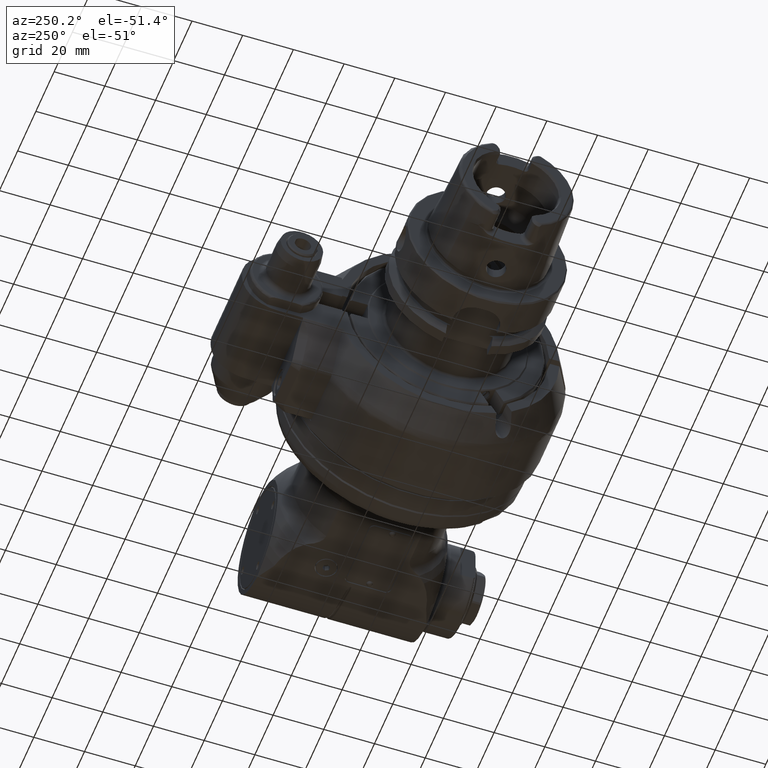
[diagram: clean part render]
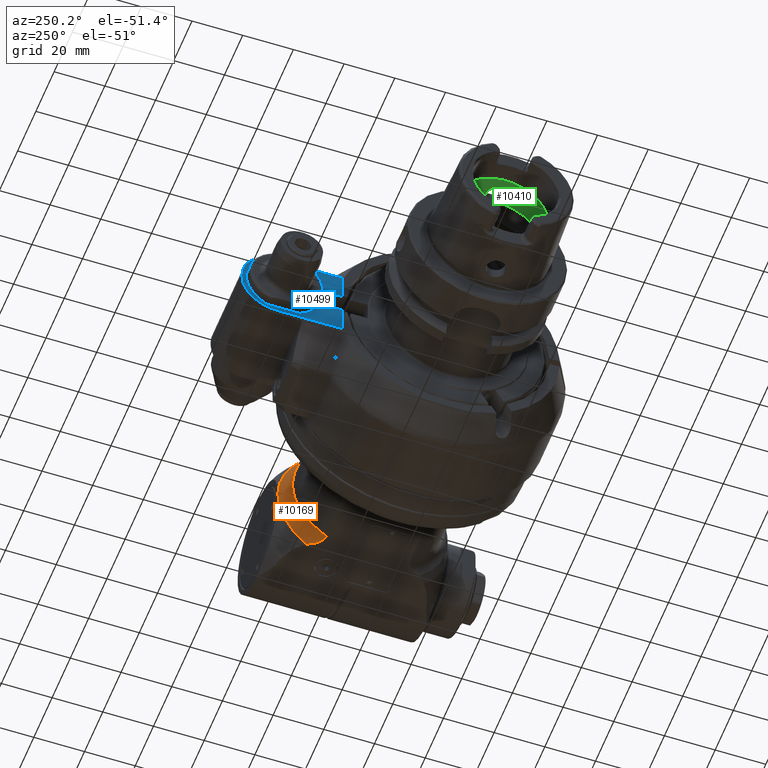
[diagram: same view with three faces highlighted in distinct colors, each labeled with its STEP entity id]
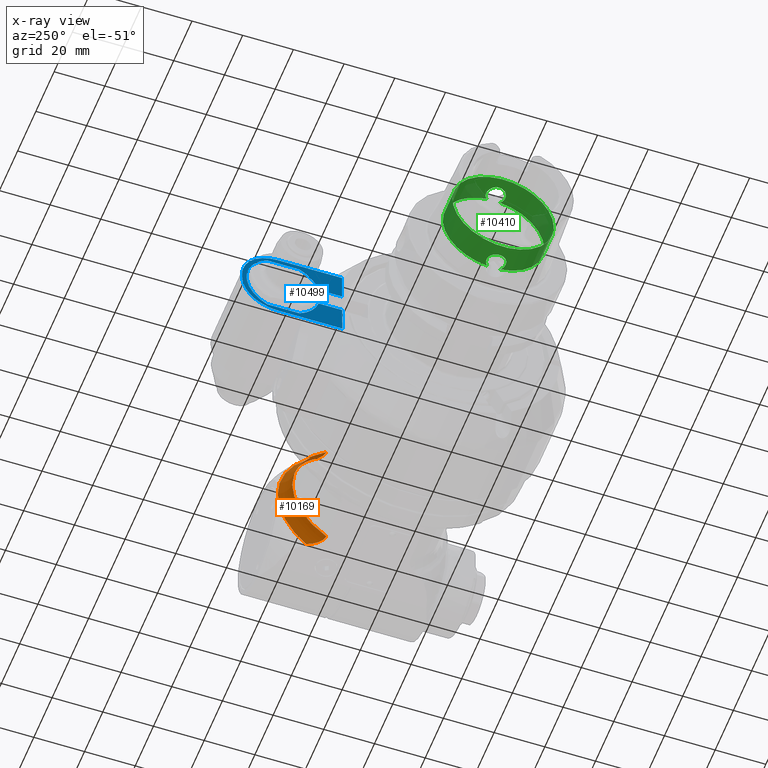
[diagram: x-ray of the same camera — body ghosted, the three highlighted faces saturated]
A machine part, auxiliary view with three faces highlighted in distinct colors.
The next image is the same camera in x-ray (body ghosted, the three faces saturated) — at least one of them is partly hidden behind the body in this view.
Their STEP definitions:

[orange] entity #10169 — the highlighted toroidal blend (fillet) surface has major radius 37 mm and minor (blend) radius 7 mm.
#87=B_SPLINE_CURVE_WITH_KNOTS('',3,(#15393,#15394,#15395,#15396,#15397,
#15398,#15399,#15400,#15401,#15402,#15403,#15404,#15405,#15406),
 .UNSPECIFIED.,.F.,.F.,(4,2,2,2,2,2,4),(-2.49776209313838,-2.39437636672067,
-2.27902658183863,-2.12689265368834,-1.97475872553806,-1.78223567166734,
-1.66971066944847),.UNSPECIFIED.);
#101=B_SPLINE_CURVE_WITH_KNOTS('',3,(#15809,#15810,#15811,#15812,#15813,
#15814,#15815,#15816,#15817,#15818,#15819,#15820,#15821,#15822),
 .UNSPECIFIED.,.F.,.F.,(4,2,2,2,2,2,4),(-3.32586297886519,-3.21333797664616,
-3.02081492277544,-2.86868099462516,-2.71654706647487,-2.60119728159283,
-2.49781155517512),.UNSPECIFIED.);
#234=TOROIDAL_SURFACE('',#11159,37.,7.);
#2281=FACE_OUTER_BOUND('',#2929,.T.);
#2929=EDGE_LOOP('',(#7147,#7148,#7149,#7150,#7151));
#3581=CIRCLE('',#11095,30.);
#3610=CIRCLE('',#11158,33.5);
#3611=CIRCLE('',#11160,33.5);
#4074=VERTEX_POINT('',#15388);
#4075=VERTEX_POINT('',#15392);
#4173=VERTEX_POINT('',#15793);
#4176=VERTEX_POINT('',#15808);
#4227=VERTEX_POINT('',#16073);
#5108=EDGE_CURVE('',#4075,#4074,#87,.T.);
#5243=EDGE_CURVE('',#4173,#4075,#3581,.T.);
#5247=EDGE_CURVE('',#4176,#4173,#101,.T.);
#5328=EDGE_CURVE('',#4074,#4227,#3610,.T.);
#5329=EDGE_CURVE('',#4227,#4176,#3611,.T.);
#7147=ORIENTED_EDGE('',*,*,#5247,.T.);
#7148=ORIENTED_EDGE('',*,*,#5243,.T.);
#7149=ORIENTED_EDGE('',*,*,#5108,.T.);
#7150=ORIENTED_EDGE('',*,*,#5328,.T.);
#7151=ORIENTED_EDGE('',*,*,#5329,.T.);
#10169=ADVANCED_FACE('',(#2281),#234,.F.);
#11095=AXIS2_PLACEMENT_3D('',#15794,#12607,#12608);
#11158=AXIS2_PLACEMENT_3D('',#16077,#12759,#12760);
#11159=AXIS2_PLACEMENT_3D('',#16078,#12761,#12762);
#11160=AXIS2_PLACEMENT_3D('',#16079,#12763,#12764);
#12607=DIRECTION('center_axis',(1.,0.,0.));
#12608=DIRECTION('ref_axis',(0.,1.,0.));
#12759=DIRECTION('center_axis',(-1.,0.,0.));
#12760=DIRECTION('ref_axis',(0.,0.819152044289016,0.573576436351011));
#12761=DIRECTION('center_axis',(1.,0.,0.));
#12762=DIRECTION('ref_axis',(0.,1.,-1.22464679914735E-16));
#12763=DIRECTION('center_axis',(-1.,0.,0.));
#12764=DIRECTION('ref_axis',(0.,1.,0.));
#15388=CARTESIAN_POINT('',(58.000000321349,22.2991037343196,24.9999998483871));
#15392=CARTESIAN_POINT('',(51.93782221817,16.58312395178,25.));
#15393=CARTESIAN_POINT('Ctrl Pts',(51.93782221817,16.583123951777,25.));
#15394=CARTESIAN_POINT('Ctrl Pts',(52.282441306229,16.583123951777,25.));
#15395=CARTESIAN_POINT('Ctrl Pts',(52.6917353349449,16.6422520575151,25.));
#15396=CARTESIAN_POINT('Ctrl Pts',(53.3934489095302,16.8402713953867,25.));
#15397=CARTESIAN_POINT('Ctrl Pts',(53.8152160730215,17.0273586096957,25.));
#15398=CARTESIAN_POINT('Ctrl Pts',(54.5843919534727,17.478292191667,25.));
#15399=CARTESIAN_POINT('Ctrl Pts',(55.0206983836014,17.8190712330244,25.));
#15400=CARTESIAN_POINT('Ctrl Pts',(55.8122244578217,18.5891145938405,25.));
#15401=CARTESIAN_POINT('Ctrl Pts',(56.1684215512573,19.0173735566936,25.));
#15402=CARTESIAN_POINT('Ctrl Pts',(56.8418295870736,19.9481759632981,25.));
#15403=CARTESIAN_POINT('Ctrl Pts',(57.2036025382881,20.5518000895077,25.));
#15404=CARTESIAN_POINT('Ctrl Pts',(57.6935946921737,21.550074593023,25.));
#15405=CARTESIAN_POINT('Ctrl Pts',(57.8570280916672,21.9270808406772,25.));
#15406=CARTESIAN_POINT('Ctrl Pts',(58.0000002856475,22.29910374804,25.));
#15793=CARTESIAN_POINT('',(51.93782221817,16.58312395178,-25.));
#15794=CARTESIAN_POINT('Origin',(51.93782221817,0.,0.));
#15808=CARTESIAN_POINT('',(58.0000003213498,22.2991037343212,-24.9999998483868));
#15809=CARTESIAN_POINT('Ctrl Pts',(58.0000002856481,22.2991037480417,-25.));
#15810=CARTESIAN_POINT('Ctrl Pts',(57.8570280916677,21.9270808406783,-25.));
#15811=CARTESIAN_POINT('Ctrl Pts',(57.693594692174,21.5500745930235,-25.));
#15812=CARTESIAN_POINT('Ctrl Pts',(57.2036025382881,20.5518000895076,-25.));
#15813=CARTESIAN_POINT('Ctrl Pts',(56.8418295870736,19.9481759632981,-25.));
#15814=CARTESIAN_POINT('Ctrl Pts',(56.1684215512573,19.0173735566936,-25.));
#15815=CARTESIAN_POINT('Ctrl Pts',(55.8122244578216,18.5891145938405,-25.));
#15816=CARTESIAN_POINT('Ctrl Pts',(55.0206983836014,17.8190712330244,-25.));
#15817=CARTESIAN_POINT('Ctrl Pts',(54.5843919534727,17.478292191667,-25.));
#15818=CARTESIAN_POINT('Ctrl Pts',(53.8152160730215,17.0273586096957,-25.));
#15819=CARTESIAN_POINT('Ctrl Pts',(53.3934489095302,16.8402713953867,-25.));
#15820=CARTESIAN_POINT('Ctrl Pts',(52.6917353349449,16.6422520575151,-25.));
#15821=CARTESIAN_POINT('Ctrl Pts',(52.282441306229,16.583123951777,-25.));
#15822=CARTESIAN_POINT('Ctrl Pts',(51.93782221817,16.583123951777,-25.));
#16073=CARTESIAN_POINT('',(58.00000004466,33.5,2.6645352591E-14));
#16077=CARTESIAN_POINT('Origin',(58.00000004466,0.,0.));
#16078=CARTESIAN_POINT('Origin',(51.93782221817,0.,0.));
#16079=CARTESIAN_POINT('Origin',(58.00000004466,0.,0.));

[blue] entity #10499 — the highlighted planar face has unit normal (-1, 0, 0).
#1159=LINE('',#18818,#1816);
#1163=LINE('',#18826,#1820);
#1178=LINE('',#18897,#1835);
#1189=LINE('',#18926,#1846);
#1190=LINE('',#18929,#1847);
#1191=LINE('',#18931,#1848);
#1192=LINE('',#18933,#1849);
#1193=LINE('',#18937,#1850);
#1194=LINE('',#18940,#1851);
#1195=LINE('',#18942,#1852);
#1196=LINE('',#18946,#1853);
#1197=LINE('',#18950,#1854);
#1198=LINE('',#18953,#1855);
#1816=VECTOR('',#14306,11.01697177174);
#1820=VECTOR('',#14310,11.01697177174);
#1835=VECTOR('',#14355,0.0169717717364);
#1846=VECTOR('',#14384,15.5);
#1847=VECTOR('',#14387,15.5);
#1848=VECTOR('',#14388,0.0169717717364);
#1849=VECTOR('',#14389,10.);
#1850=VECTOR('',#14392,2.);
#1851=VECTOR('',#14395,10.);
#1852=VECTOR('',#14396,9.312640135234);
#1853=VECTOR('',#14399,12.84523257867);
#1854=VECTOR('',#14402,12.84523257867);
#1855=VECTOR('',#14405,9.312640135234);
#2611=FACE_OUTER_BOUND('',#3298,.T.);
#3298=EDGE_LOOP('',(#8845,#8846,#8847,#8848,#8849,#8850,#8851,#8852,#8853,
#8854,#8855,#8856,#8857,#8858,#8859,#8860,#8861,#8862));
#3879=CIRCLE('',#11773,14.);
#3880=CIRCLE('',#11774,14.);
#3881=CIRCLE('',#11775,14.5);
#3882=CIRCLE('',#11776,14.5);
#3883=CIRCLE('',#11777,14.5);
#4740=VERTEX_POINT('',#18815);
#4741=VERTEX_POINT('',#18817);
#4744=VERTEX_POINT('',#18823);
#4745=VERTEX_POINT('',#18825);
#4773=VERTEX_POINT('',#18894);
#4774=VERTEX_POINT('',#18896);
#4781=VERTEX_POINT('',#18928);
#4782=VERTEX_POINT('',#18930);
#4783=VERTEX_POINT('',#18932);
#4784=VERTEX_POINT('',#18934);
#4785=VERTEX_POINT('',#18936);
#4786=VERTEX_POINT('',#18938);
#4787=VERTEX_POINT('',#18941);
#4788=VERTEX_POINT('',#18943);
#4789=VERTEX_POINT('',#18945);
#4790=VERTEX_POINT('',#18947);
#4791=VERTEX_POINT('',#18949);
#4792=VERTEX_POINT('',#18951);
#6121=EDGE_CURVE('',#4741,#4740,#1159,.T.);
#6125=EDGE_CURVE('',#4744,#4745,#1163,.T.);
#6156=EDGE_CURVE('',#4774,#4773,#1178,.T.);
#6171=EDGE_CURVE('',#4745,#4773,#1189,.T.);
#6172=EDGE_CURVE('',#4781,#4740,#1190,.T.);
#6173=EDGE_CURVE('',#4782,#4781,#1191,.T.);
#6174=EDGE_CURVE('',#4783,#4782,#1192,.T.);
#6175=EDGE_CURVE('',#4783,#4784,#3879,.T.);
#6176=EDGE_CURVE('',#4784,#4785,#1193,.T.);
#6177=EDGE_CURVE('',#4785,#4786,#3880,.T.);
#6178=EDGE_CURVE('',#4774,#4786,#1194,.T.);
#6179=EDGE_CURVE('',#4744,#4787,#1195,.T.);
#6180=EDGE_CURVE('',#4787,#4788,#3881,.T.);
#6181=EDGE_CURVE('',#4789,#4788,#1196,.T.);
#6182=EDGE_CURVE('',#4789,#4790,#3882,.T.);
#6183=EDGE_CURVE('',#4791,#4790,#1197,.T.);
#6184=EDGE_CURVE('',#4791,#4792,#3883,.T.);
#6185=EDGE_CURVE('',#4792,#4741,#1198,.T.);
#8845=ORIENTED_EDGE('',*,*,#6172,.F.);
#8846=ORIENTED_EDGE('',*,*,#6173,.F.);
#8847=ORIENTED_EDGE('',*,*,#6174,.F.);
#8848=ORIENTED_EDGE('',*,*,#6175,.T.);
#8849=ORIENTED_EDGE('',*,*,#6176,.T.);
#8850=ORIENTED_EDGE('',*,*,#6177,.T.);
#8851=ORIENTED_EDGE('',*,*,#6178,.F.);
#8852=ORIENTED_EDGE('',*,*,#6156,.T.);
#8853=ORIENTED_EDGE('',*,*,#6171,.F.);
#8854=ORIENTED_EDGE('',*,*,#6125,.F.);
#8855=ORIENTED_EDGE('',*,*,#6179,.T.);
#8856=ORIENTED_EDGE('',*,*,#6180,.T.);
#8857=ORIENTED_EDGE('',*,*,#6181,.F.);
#8858=ORIENTED_EDGE('',*,*,#6182,.T.);
#8859=ORIENTED_EDGE('',*,*,#6183,.F.);
#8860=ORIENTED_EDGE('',*,*,#6184,.T.);
#8861=ORIENTED_EDGE('',*,*,#6185,.T.);
#8862=ORIENTED_EDGE('',*,*,#6121,.T.);
#9660=PLANE('',#11772);
#10499=ADVANCED_FACE('',(#2611),#9660,.T.);
#11772=AXIS2_PLACEMENT_3D('',#18927,#14385,#14386);
#11773=AXIS2_PLACEMENT_3D('',#18935,#14390,#14391);
#11774=AXIS2_PLACEMENT_3D('',#18939,#14393,#14394);
#11775=AXIS2_PLACEMENT_3D('',#18944,#14397,#14398);
#11776=AXIS2_PLACEMENT_3D('',#18948,#14400,#14401);
#11777=AXIS2_PLACEMENT_3D('',#18952,#14403,#14404);
#14306=DIRECTION('',(0.,0.,1.));
#14310=DIRECTION('',(0.,0.,-1.));
#14355=DIRECTION('',(0.,0.,-1.));
#14384=DIRECTION('',(0.,1.,0.));
#14385=DIRECTION('center_axis',(-1.,0.,0.));
#14386=DIRECTION('ref_axis',(0.,-1.,0.));
#14387=DIRECTION('',(0.,-1.,0.));
#14388=DIRECTION('',(0.,0.,1.));
#14389=DIRECTION('',(0.,-1.,0.));
#14390=DIRECTION('center_axis',(-1.,0.,0.));
#14391=DIRECTION('ref_axis',(0.,0.,1.));
#14392=DIRECTION('',(0.,0.,-1.));
#14393=DIRECTION('center_axis',(-1.,0.,0.));
#14394=DIRECTION('ref_axis',(0.,1.,0.));
#14395=DIRECTION('',(0.,1.,0.));
#14396=DIRECTION('',(0.,1.,0.));
#14397=DIRECTION('center_axis',(1.,0.,0.));
#14398=DIRECTION('ref_axis',(0.,-0.96119723205286,-0.275862068965489));
#14399=DIRECTION('',(0.,-1.,0.));
#14400=DIRECTION('center_axis',(1.,0.,0.));
#14401=DIRECTION('ref_axis',(0.,0.442939054436718,-0.896551724137936));
#14402=DIRECTION('',(0.,1.,0.));
#14403=DIRECTION('center_axis',(1.,0.,0.));
#14404=DIRECTION('ref_axis',(0.,-0.442939054436718,0.896551724137936));
#14405=DIRECTION('',(0.,-1.,0.));
#18815=CARTESIAN_POINT('',(-51.5,41.75,15.01697177174));
#18817=CARTESIAN_POINT('',(-51.5,41.75,4.));
#18818=CARTESIAN_POINT('',(-51.5,41.75,4.));
#18823=CARTESIAN_POINT('',(-51.5,41.75,-4.));
#18825=CARTESIAN_POINT('',(-51.5,41.75,-15.01697177174));
#18826=CARTESIAN_POINT('',(-51.5,41.75,-4.));
#18894=CARTESIAN_POINT('',(-51.5,57.25,-15.01697177174));
#18896=CARTESIAN_POINT('',(-51.5,57.25,-15.));
#18897=CARTESIAN_POINT('',(-51.5,57.25,-15.));
#18926=CARTESIAN_POINT('',(-51.5,41.75,-15.01697177174));
#18927=CARTESIAN_POINT('Origin',(-51.5,40.75,0.));
#18928=CARTESIAN_POINT('',(-51.5,57.25,15.01697177174));
#18929=CARTESIAN_POINT('',(-51.5,57.25,15.01697177174));
#18930=CARTESIAN_POINT('',(-51.5,57.25,15.));
#18931=CARTESIAN_POINT('',(-51.5,57.25,15.));
#18932=CARTESIAN_POINT('',(-51.5,67.25,15.));
#18933=CARTESIAN_POINT('',(-51.5,67.25,15.));
#18934=CARTESIAN_POINT('',(-51.5,81.25,1.));
#18935=CARTESIAN_POINT('Origin',(-51.5,67.25,1.));
#18936=CARTESIAN_POINT('',(-51.5,81.25,-1.));
#18937=CARTESIAN_POINT('',(-51.5,81.25,1.));
#18938=CARTESIAN_POINT('',(-51.5,67.25,-15.));
#18939=CARTESIAN_POINT('Origin',(-51.5,67.25,-1.));
#18940=CARTESIAN_POINT('',(-51.5,57.25,-15.));
#18941=CARTESIAN_POINT('',(-51.5,51.06264013523,-4.));
#18942=CARTESIAN_POINT('',(-51.5,41.75,-4.));
#18943=CARTESIAN_POINT('',(-51.5,58.57738371067,-13.));
#18944=CARTESIAN_POINT('Origin',(-51.5,65.,0.));
#18945=CARTESIAN_POINT('',(-51.5,71.42261628933,-13.));
#18946=CARTESIAN_POINT('',(-51.5,71.42261628933,-13.));
#18947=CARTESIAN_POINT('',(-51.5,71.42261628933,13.));
#18948=CARTESIAN_POINT('Origin',(-51.5,65.,0.));
#18949=CARTESIAN_POINT('',(-51.5,58.57738371067,13.));
#18950=CARTESIAN_POINT('',(-51.5,58.57738371067,13.));
#18951=CARTESIAN_POINT('',(-51.5,51.06264013523,4.));
#18952=CARTESIAN_POINT('Origin',(-51.5,65.,0.));
#18953=CARTESIAN_POINT('',(-51.5,51.06264013523,4.));

[green] entity #10410 — the highlighted cylindrical surface (bore or boss wall) has radius 20 mm, axis along (1, -0, -0).
#173=B_SPLINE_CURVE_WITH_KNOTS('',3,(#18332,#18333,#18334,#18335,#18336,
#18337,#18338,#18339,#18340,#18341,#18342,#18343,#18344,#18345,#18346,#18347,
#18348,#18349,#18350,#18351,#18352,#18353,#18354,#18355,#18356,#18357,#18358,
#18359,#18360,#18361,#18362),.UNSPECIFIED.,.F.,.F.,(4,2,2,3,2,2,2,2,2,2,
2,2,2,2,4),(1.9677714355242,1.98265323483932,2.12427480975426,2.26589638466921,
2.40751795958416,2.5491395344991,2.69075500766781,2.83237048083651,2.97398595400522,
3.11560142717392,3.25722300208887,3.39884457700381,3.54046615191876,3.68208772683371,
3.69696952610391),.UNSPECIFIED.);
#174=B_SPLINE_CURVE_WITH_KNOTS('',3,(#18366,#18367,#18368,#18369,#18370,
#18371,#18372,#18373,#18374,#18375,#18376,#18377,#18378,#18379,#18380,#18381,
#18382,#18383,#18384,#18385,#18386,#18387,#18388,#18389,#18390,#18391,#18392,
#18393,#18394,#18395,#18396),.UNSPECIFIED.,.F.,.F.,(4,2,2,2,2,2,2,2,2,2,
2,3,2,2,4),(0.834823243189956,0.849705042504712,0.991326617419658,1.1329481923346,
1.27456976724955,1.4161913421645,1.5578068153332,1.69942228850191,1.84103776167061,
1.98265323483932,2.12427480975426,2.26589638466921,2.40751795958416,2.5491395344991,
2.56402133381445),.UNSPECIFIED.);
#1082=LINE('',#18328,#1739);
#1739=VECTOR('',#13975,20.);
#2079=CYLINDRICAL_SURFACE('',#11620,20.);
#2522=FACE_OUTER_BOUND('',#3200,.T.);
#3200=EDGE_LOOP('',(#8406,#8407,#8408,#8409,#8410,#8411,#8412,#8413,#8414));
#3819=CIRCLE('',#11618,20.);
#3820=CIRCLE('',#11619,20.);
#3821=CIRCLE('',#11621,20.);
#3822=CIRCLE('',#11622,20.);
#3823=CIRCLE('',#11623,20.);
#4658=VERTEX_POINT('',#18321);
#4659=VERTEX_POINT('',#18323);
#4660=VERTEX_POINT('',#18327);
#4661=VERTEX_POINT('',#18329);
#4662=VERTEX_POINT('',#18331);
#4663=VERTEX_POINT('',#18363);
#4664=VERTEX_POINT('',#18365);
#5972=EDGE_CURVE('',#4658,#4659,#3819,.T.);
#5973=EDGE_CURVE('',#4659,#4658,#3820,.T.);
#5974=EDGE_CURVE('',#4659,#4660,#1082,.T.);
#5975=EDGE_CURVE('',#4661,#4660,#3821,.T.);
#5976=EDGE_CURVE('',#4662,#4661,#173,.F.);
#5977=EDGE_CURVE('',#4663,#4662,#3822,.T.);
#5978=EDGE_CURVE('',#4664,#4663,#174,.F.);
#5979=EDGE_CURVE('',#4660,#4664,#3823,.T.);
#8406=ORIENTED_EDGE('',*,*,#5973,.F.);
#8407=ORIENTED_EDGE('',*,*,#5974,.T.);
#8408=ORIENTED_EDGE('',*,*,#5975,.F.);
#8409=ORIENTED_EDGE('',*,*,#5976,.F.);
#8410=ORIENTED_EDGE('',*,*,#5977,.F.);
#8411=ORIENTED_EDGE('',*,*,#5978,.F.);
#8412=ORIENTED_EDGE('',*,*,#5979,.F.);
#8413=ORIENTED_EDGE('',*,*,#5974,.F.);
#8414=ORIENTED_EDGE('',*,*,#5972,.F.);
#10410=ADVANCED_FACE('',(#2522),#2079,.F.);
#11618=AXIS2_PLACEMENT_3D('',#18324,#13969,#13970);
#11619=AXIS2_PLACEMENT_3D('',#18325,#13971,#13972);
#11620=AXIS2_PLACEMENT_3D('',#18326,#13973,#13974);
#11621=AXIS2_PLACEMENT_3D('',#18330,#13976,#13977);
#11622=AXIS2_PLACEMENT_3D('',#18364,#13978,#13979);
#11623=AXIS2_PLACEMENT_3D('',#18397,#13980,#13981);
#13969=DIRECTION('center_axis',(0.,0.,-1.));
#13970=DIRECTION('ref_axis',(1.,0.,0.));
#13971=DIRECTION('center_axis',(0.,0.,-1.));
#13972=DIRECTION('ref_axis',(1.,0.,0.));
#13973=DIRECTION('center_axis',(0.,0.,-1.));
#13974=DIRECTION('ref_axis',(0.255555555555586,-0.966794372151946,0.));
#13975=DIRECTION('',(0.,0.,-1.));
#13976=DIRECTION('center_axis',(0.,0.,1.));
#13977=DIRECTION('ref_axis',(-0.127205188290497,0.991876423790776,0.));
#13978=DIRECTION('center_axis',(0.,0.,1.));
#13979=DIRECTION('ref_axis',(0.127205188290103,-0.991876423790827,0.));
#13980=DIRECTION('center_axis',(0.,0.,1.));
#13981=DIRECTION('ref_axis',(-0.127205188290497,0.991876423790776,0.));
#18321=CARTESIAN_POINT('',(20.,-2.44929359829471E-15,67.9125644347));
#18323=CARTESIAN_POINT('',(-5.111111111111,19.33588744304,67.9125644347));
#18324=CARTESIAN_POINT('Origin',(0.,0.,67.9125644347));
#18325=CARTESIAN_POINT('Origin',(0.,0.,67.9125644347));
#18326=CARTESIAN_POINT('Origin',(0.,0.,62.74948629731));
#18327=CARTESIAN_POINT('',(-5.11111111111171,19.3358874430389,57.2399979980898));
#18328=CARTESIAN_POINT('',(-5.11111111111171,19.3358874430389,62.74948629731));
#18329=CARTESIAN_POINT('',(-2.544103765468,19.83752847586,57.23999799809));
#18330=CARTESIAN_POINT('Origin',(0.,0.,57.2399979984));
#18331=CARTESIAN_POINT('',(2.544103765803,19.83752847582,57.2399979984));
#18332=CARTESIAN_POINT('Ctrl Pts',(-2.54410376547014,19.8375284758591,57.2399979980914));
#18333=CARTESIAN_POINT('Ctrl Pts',(-2.5808696690927,19.832813358552,57.2739494339822));
#18334=CARTESIAN_POINT('Ctrl Pts',(-2.61672955097437,19.8281105439806,57.3084286920753));
#18335=CARTESIAN_POINT('Ctrl Pts',(-2.98397246271642,19.7789868876592,57.6756716038173));
#18336=CARTESIAN_POINT('Ctrl Pts',(-3.27238367725626,19.731429741537,58.0965966163263));
#18337=CARTESIAN_POINT('Ctrl Pts',(-3.65542701546408,19.6640704965084,59.0201754070192));
#18338=CARTESIAN_POINT('Ctrl Pts',(-3.75,19.6452920568771,59.5229280836168));
#18339=CARTESIAN_POINT('Ctrl Pts',(-3.75,19.6452920568771,59.995));
#18340=CARTESIAN_POINT('Ctrl Pts',(-3.75,19.6452920568771,60.4670719163832));
#18341=CARTESIAN_POINT('Ctrl Pts',(-3.65542701546408,19.6640704965084,60.9698245929808));
#18342=CARTESIAN_POINT('Ctrl Pts',(-3.27238367725626,19.731429741537,61.8934033836737));
#18343=CARTESIAN_POINT('Ctrl Pts',(-2.98397246271642,19.7789868876592,62.3143283961827));
#18344=CARTESIAN_POINT('Ctrl Pts',(-2.31934271423217,19.8678900149943,62.9789581446669));
#18345=CARTESIAN_POINT('Ctrl Pts',(-1.89841159537052,19.9150796801946,63.2673805817074));
#18346=CARTESIAN_POINT('Ctrl Pts',(-0.97481167704041,19.9815942165963,63.6504320620407));
#18347=CARTESIAN_POINT('Ctrl Pts',(-0.472051577229016,20.,63.745));
#18348=CARTESIAN_POINT('Ctrl Pts',(0.472051577229016,20.,63.745));
#18349=CARTESIAN_POINT('Ctrl Pts',(0.97481167704041,19.9815942165963,63.6504320620407));
#18350=CARTESIAN_POINT('Ctrl Pts',(1.89841159537052,19.9150796801946,63.2673805817074));
#18351=CARTESIAN_POINT('Ctrl Pts',(2.31934271423217,19.8678900149943,62.9789581446669));
#18352=CARTESIAN_POINT('Ctrl Pts',(2.98397246271642,19.7789868876592,62.3143283961827));
#18353=CARTESIAN_POINT('Ctrl Pts',(3.27238367725626,19.731429741537,61.8934033836737));
#18354=CARTESIAN_POINT('Ctrl Pts',(3.65542701546408,19.6640704965084,60.9698245929808));
#18355=CARTESIAN_POINT('Ctrl Pts',(3.75,19.6452920568771,60.4670719163832));
#18356=CARTESIAN_POINT('Ctrl Pts',(3.75,19.6452920568771,59.5229280836168));
#18357=CARTESIAN_POINT('Ctrl Pts',(3.65542701546408,19.6640704965084,59.0201754070192));
#18358=CARTESIAN_POINT('Ctrl Pts',(3.27238367725626,19.731429741537,58.0965966163263));
#18359=CARTESIAN_POINT('Ctrl Pts',(2.98397246271642,19.7789868876592,57.6756716038173));
#18360=CARTESIAN_POINT('Ctrl Pts',(2.61672955107976,19.8281105439665,57.3084286921807));
#18361=CARTESIAN_POINT('Ctrl Pts',(2.58086966930916,19.8328133585236,57.2739494341904));
#18362=CARTESIAN_POINT('Ctrl Pts',(2.54410376580305,19.8375284758164,57.2399979983988));
#18363=CARTESIAN_POINT('',(2.544103765473,-19.83752847586,57.23999799809));
#18364=CARTESIAN_POINT('Origin',(0.,0.,57.2399979984));
#18365=CARTESIAN_POINT('',(-2.544103765469,-19.83752847586,57.23999799809));
#18366=CARTESIAN_POINT('Ctrl Pts',(2.54410376547282,-19.8375284758588,57.2399979980938));
#18367=CARTESIAN_POINT('Ctrl Pts',(2.58086966909443,-19.8328133585518,57.2739494339839));
#18368=CARTESIAN_POINT('Ctrl Pts',(2.61672955097522,-19.8281105439805,57.3084286920761));
#18369=CARTESIAN_POINT('Ctrl Pts',(2.98397246271642,-19.7789868876592,57.6756716038173));
#18370=CARTESIAN_POINT('Ctrl Pts',(3.27238367725626,-19.731429741537,58.0965966163263));
#18371=CARTESIAN_POINT('Ctrl Pts',(3.65542701546408,-19.6640704965084,59.0201754070192));
#18372=CARTESIAN_POINT('Ctrl Pts',(3.75,-19.6452920568771,59.5229280836168));
#18373=CARTESIAN_POINT('Ctrl Pts',(3.75,-19.6452920568771,60.4670719163832));
#18374=CARTESIAN_POINT('Ctrl Pts',(3.65542701546408,-19.6640704965084,60.9698245929808));
#18375=CARTESIAN_POINT('Ctrl Pts',(3.27238367725626,-19.731429741537,61.8934033836737));
#18376=CARTESIAN_POINT('Ctrl Pts',(2.98397246271642,-19.7789868876592,62.3143283961827));
#18377=CARTESIAN_POINT('Ctrl Pts',(2.31934271423217,-19.8678900149943,62.9789581446669));
#18378=CARTESIAN_POINT('Ctrl Pts',(1.89841159537052,-19.9150796801946,63.2673805817074));
#18379=CARTESIAN_POINT('Ctrl Pts',(0.97481167704041,-19.9815942165963,63.6504320620407));
#18380=CARTESIAN_POINT('Ctrl Pts',(0.472051577229016,-20.,63.745));
#18381=CARTESIAN_POINT('Ctrl Pts',(-0.472051577229016,-20.,63.745));
#18382=CARTESIAN_POINT('Ctrl Pts',(-0.97481167704041,-19.9815942165963,
63.6504320620407));
#18383=CARTESIAN_POINT('Ctrl Pts',(-1.89841159537052,-19.9150796801946,
63.2673805817074));
#18384=CARTESIAN_POINT('Ctrl Pts',(-2.31934271423217,-19.8678900149943,
62.9789581446669));
#18385=CARTESIAN_POINT('Ctrl Pts',(-2.98397246271642,-19.7789868876592,
62.3143283961827));
#18386=CARTESIAN_POINT('Ctrl Pts',(-3.27238367725626,-19.731429741537,61.8934033836737));
#18387=CARTESIAN_POINT('Ctrl Pts',(-3.65542701546408,-19.6640704965084,
60.9698245929808));
#18388=CARTESIAN_POINT('Ctrl Pts',(-3.75,-19.6452920568771,60.4670719163832));
#18389=CARTESIAN_POINT('Ctrl Pts',(-3.75,-19.6452920568771,59.995));
#18390=CARTESIAN_POINT('Ctrl Pts',(-3.75,-19.6452920568771,59.5229280836168));
#18391=CARTESIAN_POINT('Ctrl Pts',(-3.65542701546408,-19.6640704965084,
59.0201754070192));
#18392=CARTESIAN_POINT('Ctrl Pts',(-3.27238367725626,-19.731429741537,58.0965966163263));
#18393=CARTESIAN_POINT('Ctrl Pts',(-2.98397246271642,-19.7789868876592,
57.6756716038173));
#18394=CARTESIAN_POINT('Ctrl Pts',(-2.61672955097384,-19.8281105439806,
57.3084286920747));
#18395=CARTESIAN_POINT('Ctrl Pts',(-2.58086966909161,-19.8328133585521,
57.2739494339812));
#18396=CARTESIAN_POINT('Ctrl Pts',(-2.54410376546847,-19.8375284758593,
57.2399979980898));
#18397=CARTESIAN_POINT('Origin',(0.,0.,57.2399979984));